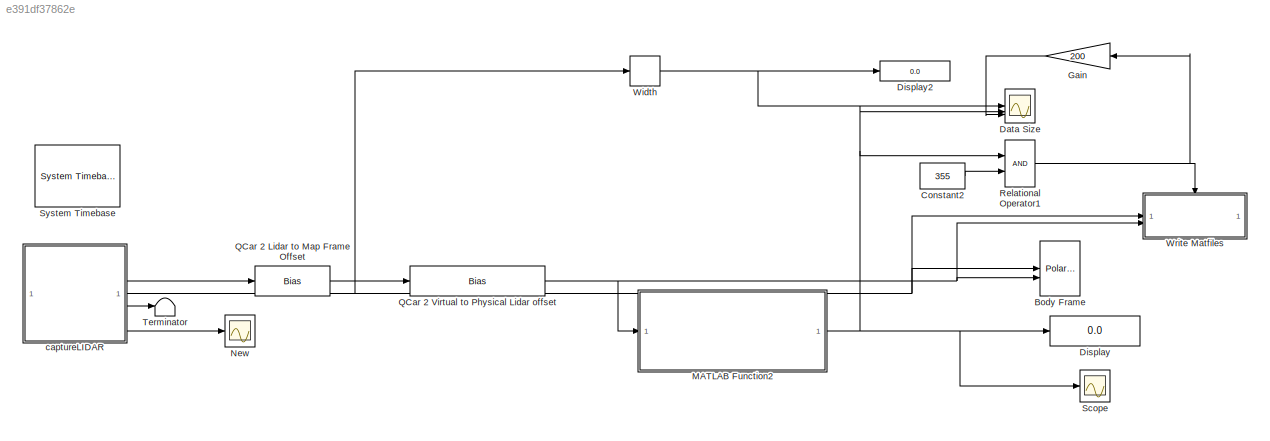
MODEL slx_e391df37862e
KIND model
CONFIG AbsTol = auto
CONFIG EnableMultiTasking = on
CONFIG FixedStep = 1/20
CONFIG MaxStep = auto
CONFIG MinStep = auto
CONFIG RelTol = 1e-3
CONFIG SampleTimeConstraint = Unconstrained
CONFIG SolverName = ode1
CONFIG StartTime = 0.0
CONFIG StopTime = 5
BLOCK [Reference] Body Frame  REF=quarc_library/Sinks/Figures/Polar Figure
  SourceBlock = quarc_library/Sinks/Figures/Polar Figure
  SourceProductName = QUARC Targets
  SourceType = Polar Figure
BLOCK [Constant] Constant2
  Value = 355
BLOCK [Scope] Data Size
  Floating = off
  NumInputPorts = 3
  ScopeSpecificationString = Simulink.scopes.TimeScopeBlockCfg('CurrentConfiguration', extmgr.ConfigurationSet(extmgr.Configuration('Core','General UI',true,'DisplayFullSourceName',false,'ShowMainToolbar',true),extmgr.Configuration('Sources','WiredSimulink',true,'DataLogging',false,'DataLoggingVariableName','ScopeData1','DataLoggingLimitDataPoints',false,'DataLoggingMaxPoints','5000','DataLoggingDecimateData',false,'DataLoggi...<+1994ch>
BLOCK [Display] Display
  Decimation = 1
BLOCK [Display] Display2
  Decimation = 1
BLOCK [Gain] Gain
  Gain = 200
  NameLocation = top
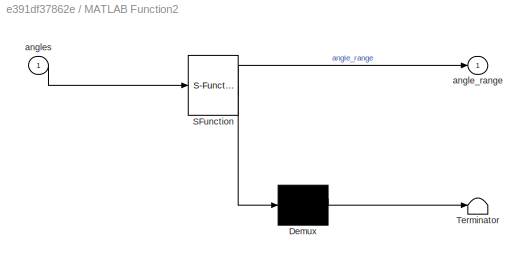
BLOCK [SubSystem] MATLAB Function2
  ErrorFcn = Stateflow.Translate.translate
  PermitHierarchicalResolution = ExplicitOnly
  SFBlockType = MATLAB Function
  TreatAsAtomicUnit = on
BLOCK [Demux] MATLAB Function2/ Demux 
  Outputs = 1
BLOCK [S-Function] MATLAB Function2/ SFunction 
  EnableBusSupport = off
  FunctionName = sf_sfun
  PortCounts = [1 2]
  SFcnIsStateOwnerBlock = off
  SFunctionDeploymentMode = off
  Tag = Stateflow S-Function 2
BLOCK [Terminator] MATLAB Function2/ Terminator 
BLOCK [Outport] MATLAB Function2/angle_range
BLOCK [Inport] MATLAB Function2/angles
BLOCK [Scope] New
  Floating = off
  NumInputPorts = 1
  ScopeSpecificationString = Simulink.scopes.TimeScopeBlockCfg('CurrentConfiguration', extmgr.ConfigurationSet(extmgr.Configuration('Core','General UI',true,'DisplayFullSourceName',false,'ShowMainToolbar',true,'FigureColor','[0.129411764705882 0.129411764705882 0.129411764705882]'),extmgr.Configuration('Sources','WiredSimulink',true,'DataLogging',false,'DataLoggingVariableName','ScopeData1','DataLoggingLimitDataPoints',false,...<+2117ch>
BLOCK [Bias] QCar 2 Lidar to Map Frame Offset
  Bias = -pi/2
  SaturateOnIntegerOverflow = off
BLOCK [Bias] QCar 2 Virtual to Physical Lidar offset
  Bias = pi - 7*pi/180
  SaturateOnIntegerOverflow = off
BLOCK [RelationalOperator] Relational Operator1
  InputSameDT = off
  OutDataTypeStr = boolean
  RndMeth = Simplest
BLOCK [Scope] Scope
  Floating = off
  NumInputPorts = 1
  ScopeSpecificationString = Simulink.scopes.TimeScopeBlockCfg('CurrentConfiguration', extmgr.ConfigurationSet(extmgr.Configuration('Core','General UI',true,'DisplayFullSourceName',false,'ShowMainToolbar',true),extmgr.Configuration('Sources','WiredSimulink',true,'DataLogging',false,'DataLoggingVariableName','ScopeData2','DataLoggingLimitDataPoints',false,'DataLoggingMaxPoints','5000','DataLoggingDecimateData',false,'DataLoggi...<+2004ch>
BLOCK [Reference] System Timebase  REF=quarc_library/Advanced/Timing/System Timebase
  SourceBlock = quarc_library/Advanced/Timing/System Timebase
  SourceProductName = QUARC Targets
  SourceType = System Timebase
BLOCK [Terminator] Terminator
BLOCK [Width] Width
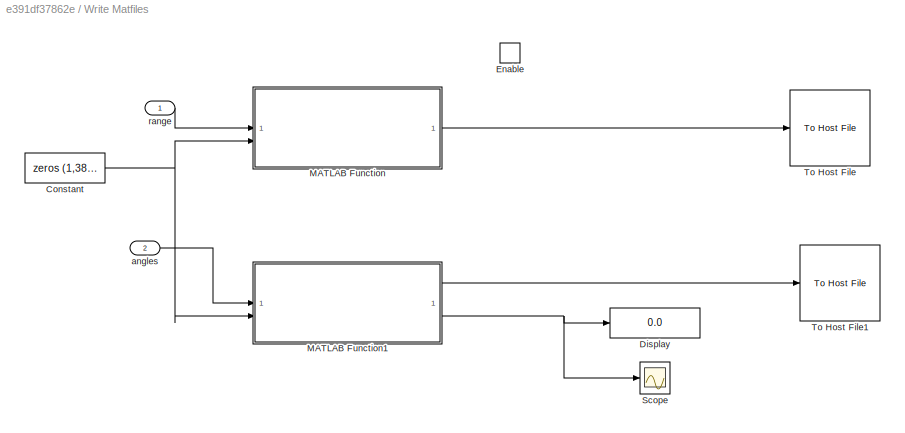
BLOCK [SubSystem] Write Matfiles
  TreatAsAtomicUnit = on
BLOCK [Constant] Write Matfiles/Constant
  Value = zeros (1,384)
BLOCK [Display] Write Matfiles/Display
  Decimation = 1
BLOCK [EnablePort] Write Matfiles/Enable
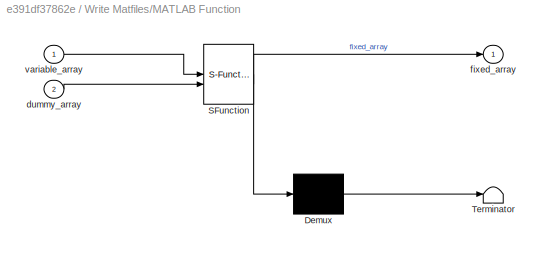
BLOCK [SubSystem] Write Matfiles/MATLAB Function
  ErrorFcn = Stateflow.Translate.translate
  PermitHierarchicalResolution = ExplicitOnly
  SFBlockType = MATLAB Function
  TreatAsAtomicUnit = on
BLOCK [Demux] Write Matfiles/MATLAB Function/ Demux 
  Outputs = 1
BLOCK [S-Function] Write Matfiles/MATLAB Function/ SFunction 
  EnableBusSupport = off
  FunctionName = sf_sfun
  PortCounts = [2 2]
  SFcnIsStateOwnerBlock = off
  SFunctionDeploymentMode = off
  Tag = Stateflow S-Function 1
BLOCK [Terminator] Write Matfiles/MATLAB Function/ Terminator 
BLOCK [Inport] Write Matfiles/MATLAB Function/dummy_array
  Port = 2
BLOCK [Outport] Write Matfiles/MATLAB Function/fixed_array
  VectorParamsAs1DForOutWhenUnconnected = off
BLOCK [Inport] Write Matfiles/MATLAB Function/variable_array
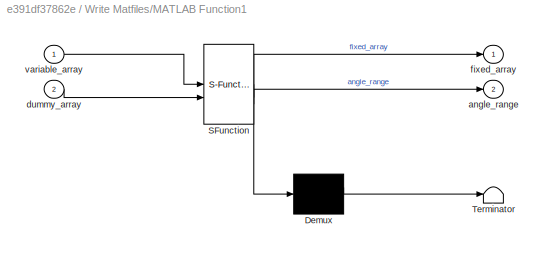
BLOCK [SubSystem] Write Matfiles/MATLAB Function1
  ErrorFcn = Stateflow.Translate.translate
  PermitHierarchicalResolution = ExplicitOnly
  SFBlockType = MATLAB Function
  TreatAsAtomicUnit = on
BLOCK [Demux] Write Matfiles/MATLAB Function1/ Demux 
  Outputs = 1
BLOCK [S-Function] Write Matfiles/MATLAB Function1/ SFunction 
  EnableBusSupport = off
  FunctionName = sf_sfun
  PortCounts = [2 3]
  SFcnIsStateOwnerBlock = off
  SFunctionDeploymentMode = off
  Tag = Stateflow S-Function 3
BLOCK [Terminator] Write Matfiles/MATLAB Function1/ Terminator 
BLOCK [Outport] Write Matfiles/MATLAB Function1/angle_range
  Port = 2
BLOCK [Inport] Write Matfiles/MATLAB Function1/dummy_array
  Port = 2
BLOCK [Outport] Write Matfiles/MATLAB Function1/fixed_array
  VectorParamsAs1DForOutWhenUnconnected = off
BLOCK [Inport] Write Matfiles/MATLAB Function1/variable_array
BLOCK [Scope] Write Matfiles/Scope
  Floating = off
  NumInputPorts = 1
  ScopeSpecificationString = Simulink.scopes.TimeScopeBlockCfg('CurrentConfiguration', extmgr.ConfigurationSet(extmgr.Configuration('Core','General UI',true,'DisplayFullSourceName',false,'ShowMainToolbar',true),extmgr.Configuration('Sources','WiredSimulink',true,'DataLogging',false,'DataLoggingVariableName','ScopeData1','DataLoggingLimitDataPoints',false,'DataLoggingMaxPoints','5000','DataLoggingDecimateData',false,'DataLoggi...<+2004ch>
BLOCK [Reference] Write Matfiles/To Host File  REF=quarc_library/Sinks/To Host/To Host File
  AttributesFormatString = %<final_file_name>
  SourceBlock = quarc_library/Sinks/To Host/To Host File
  SourceProductName = QUARC Targets
  SourceType = To Host File
BLOCK [Reference] Write Matfiles/To Host File1  REF=quarc_library/Sinks/To Host/To Host File
  AttributesFormatString = %<final_file_name>
  SourceBlock = quarc_library/Sinks/To Host/To Host File
  SourceProductName = QUARC Targets
  SourceType = To Host File
BLOCK [Inport] Write Matfiles/angles
  Port = 2
BLOCK [Inport] Write Matfiles/range
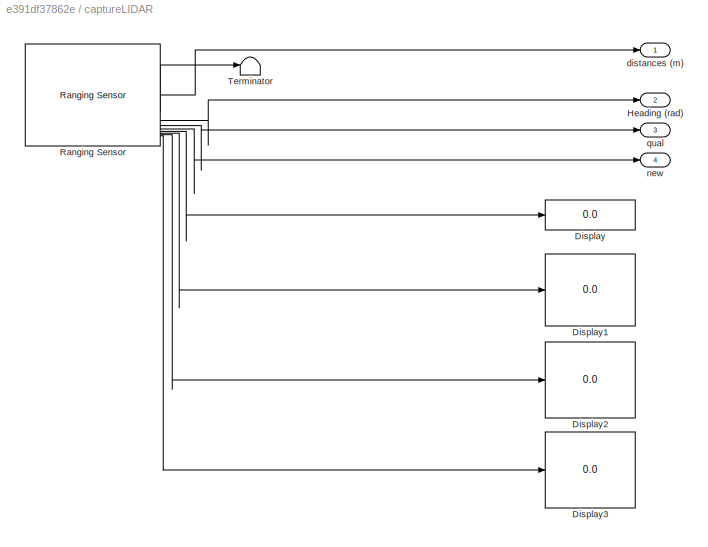
BLOCK [SubSystem] captureLIDAR
BLOCK [Display] captureLIDAR/Display
  Decimation = 100
BLOCK [Display] captureLIDAR/Display1
  Decimation = 100
BLOCK [Display] captureLIDAR/Display2
  Decimation = 100
BLOCK [Display] captureLIDAR/Display3
  Decimation = 100
BLOCK [Outport] captureLIDAR/Heading (rad)
  Port = 2
  VectorParamsAs1DForOutWhenUnconnected = off
BLOCK [Reference] captureLIDAR/Ranging Sensor  REF=quarc_library/Devices/Third-Party/Sensors/Ranging Sensor
  SourceBlock = quarc_library/Devices/Third-Party/Sensors/Ranging Sensor
  SourceProductName = QUARC Targets
  SourceType = Ranging Sensor
BLOCK [Terminator] captureLIDAR/Terminator
BLOCK [Outport] captureLIDAR/distances (m)
  VectorParamsAs1DForOutWhenUnconnected = off
BLOCK [Outport] captureLIDAR/new
  Port = 4
  VectorParamsAs1DForOutWhenUnconnected = off
BLOCK [Outport] captureLIDAR/qual
  Port = 3
  VectorParamsAs1DForOutWhenUnconnected = off
LINE Constant2:1 -> Relational Operator1:2
LINE Gain:1 -> Data Size:3
NET MATLAB Function2:1 -> Data Size:2, Display:1, Relational Operator1:1, Scope:1
LINE QCar 2 Lidar to Map Frame Offset:1 -> QCar 2 Virtual to Physical Lidar offset:1
NET QCar 2 Virtual to Physical Lidar offset:1 -> Body Frame:2, MATLAB Function2:1, Write Matfiles:2
NET Relational Operator1:1 -> Gain:1, Write Matfiles:enable
NET Width:1 -> Data Size:1, Display2:1
NET Write Matfiles/Constant:1 -> Write Matfiles/MATLAB Function1:2, Write Matfiles/MATLAB Function:2
LINE Write Matfiles/MATLAB Function1:1 -> Write Matfiles/To Host File1:1
NET Write Matfiles/MATLAB Function1:2 -> Write Matfiles/Display:1, Write Matfiles/Scope:1
LINE Write Matfiles/MATLAB Function:1 -> Write Matfiles/To Host File:1
LINE Write Matfiles/angles:1 -> Write Matfiles/MATLAB Function1:1
LINE Write Matfiles/range:1 -> Write Matfiles/MATLAB Function:1
LINE captureLIDAR/Ranging Sensor:1 -> captureLIDAR/distances (m):1
LINE captureLIDAR/Ranging Sensor:2 -> captureLIDAR/Terminator:1
LINE captureLIDAR/Ranging Sensor:3 -> captureLIDAR/Heading (rad):1
LINE captureLIDAR/Ranging Sensor:4 -> captureLIDAR/qual:1
LINE captureLIDAR/Ranging Sensor:5 -> captureLIDAR/new:1
LINE captureLIDAR/Ranging Sensor:6 -> captureLIDAR/Display:1
LINE captureLIDAR/Ranging Sensor:7 -> captureLIDAR/Display1:1
LINE captureLIDAR/Ranging Sensor:8 -> captureLIDAR/Display2:1
LINE captureLIDAR/Ranging Sensor:9 -> captureLIDAR/Display3:1
NET captureLIDAR:1 -> Body Frame:1, Width:1, Write Matfiles:1
LINE captureLIDAR:2 -> QCar 2 Lidar to Map Frame Offset:1
LINE captureLIDAR:3 -> Terminator:1
LINE captureLIDAR:4 -> New:1
note: NET lines group one-source signal fan-out (src -> all destinations, sorted); 1:1 wires keep LINE
CHART MATLAB Function2 states=1 transitions=1
  STATE_LABEL 'eML_blk_kernel()'
  STATE_LABEL 'SCRIPT:\nfunction angle_range = find_angle_range (angles)\nangle_range = 0;\nangle_range = max (angles) - min(angles);\nangle_range = 180/pi*angle_range;'
CHART Write Matfiles/MATLAB Function1 states=1 transitions=1
  STATE_LABEL 'eML_blk_kernel()'
  STATE_LABEL 'SCRIPT:\nfunction [fixed_array, angle_range] = make_fixed (variable_array, dummy_array)\nfixed_array = dummy_array;\nangle_range = 0;\nfor i = 1:length (variable_array)\n    fixed_array(i) = variable_array (i);\nend\n% angle_range = variable_array(length (variable_array)) - variable_array(1);\nangle_range = max (variable_array) - min(variable_array);\nangle_range = 180/pi*angle_range;'
CHART Write Matfiles/MATLAB Function states=1 transitions=1
  STATE_LABEL 'eML_blk_kernel()'
  STATE_LABEL 'SCRIPT:\nfunction fixed_array = make_fixed (variable_array, dummy_array)\nfixed_array = dummy_array;\nfor i = 1:length (variable_array)\n    fixed_array(i) = variable_array (i);\nend\n'
CHART  states=0 transitions=0
CHART  states=0 transitions=0
CHART  states=0 transitions=0
